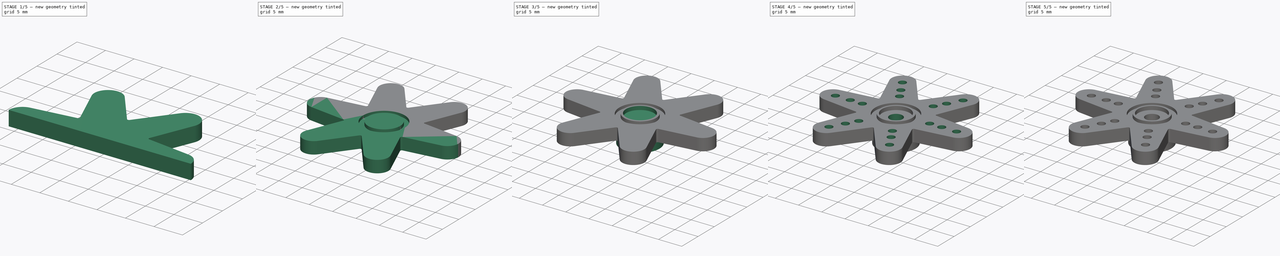
[diagram: build sequence overview — one tinted view per stage of 5, left to right]
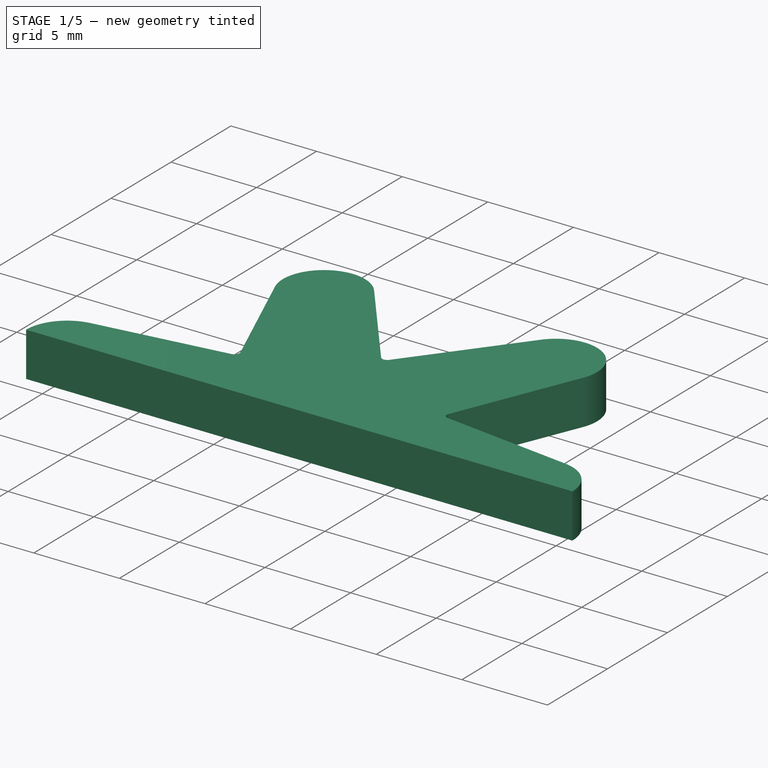
[diagram: stage 1 of 5 — iso view after this stage's code; geometry added in this stage tinted green]
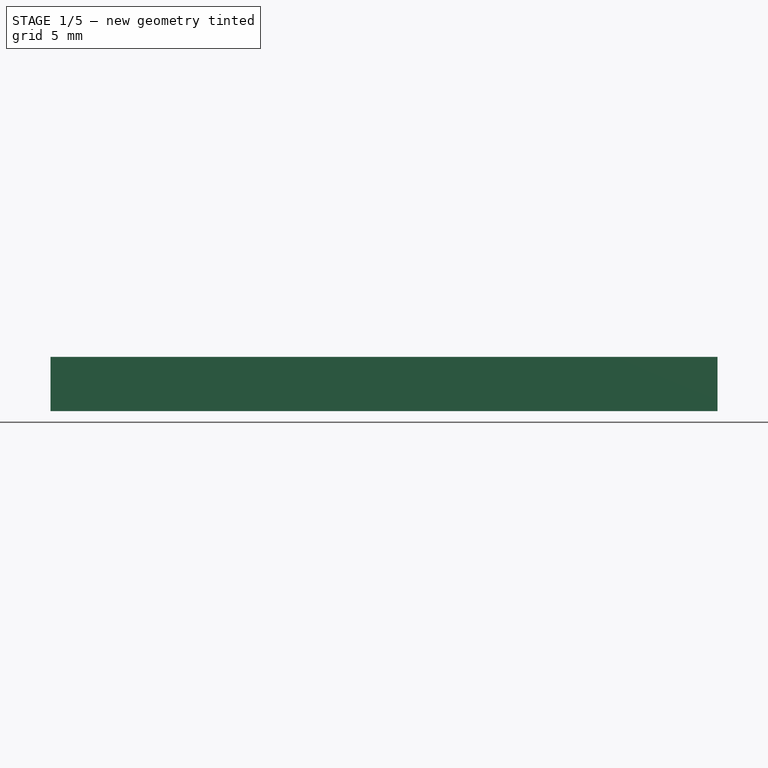
[diagram: stage 1 of 5 — front view after this stage's code; geometry added in this stage tinted green]
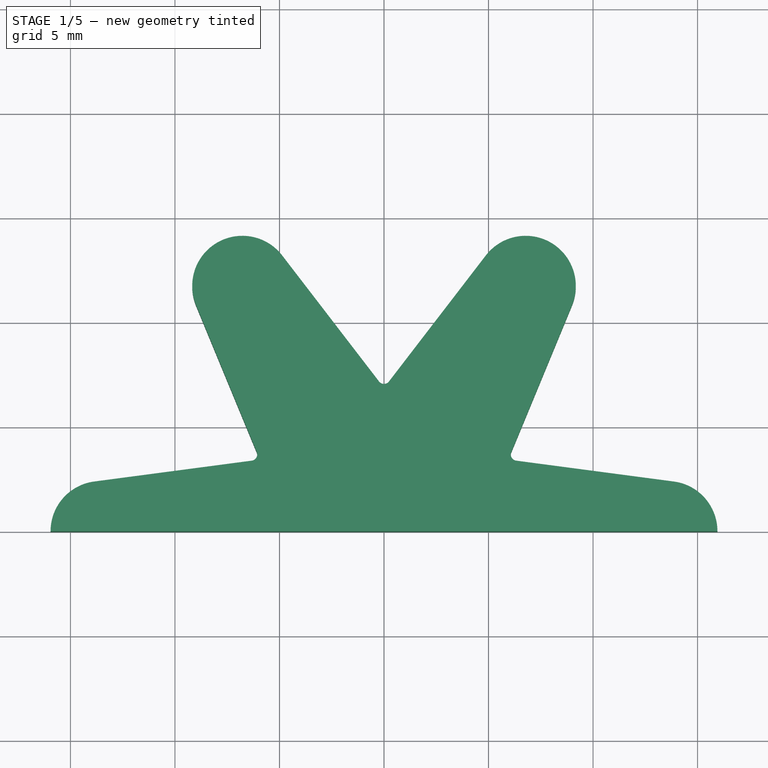
[diagram: stage 1 of 5 — top view after this stage's code; geometry added in this stage tinted green]
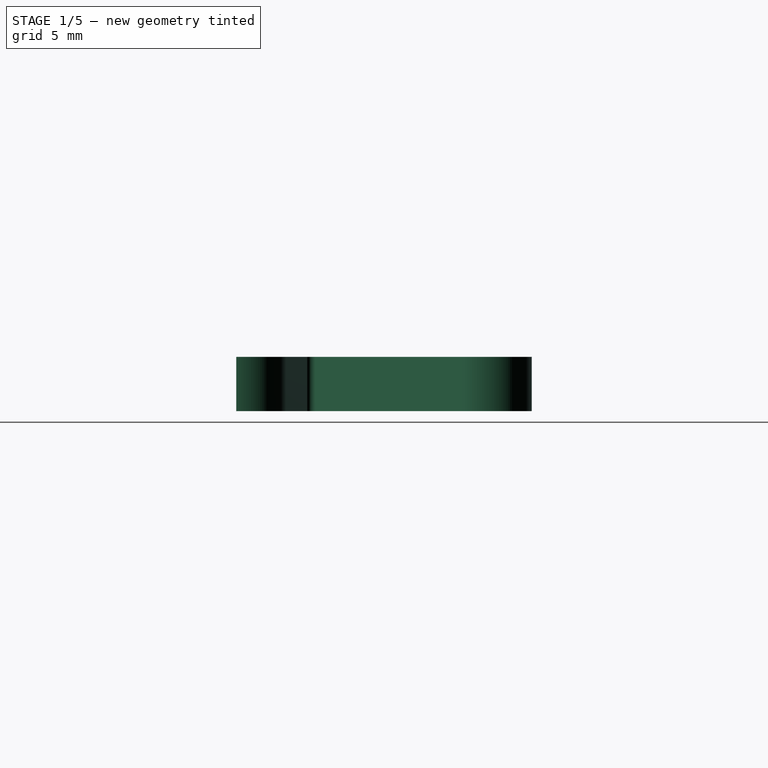
[diagram: stage 1 of 5 — right view after this stage's code; geometry added in this stage tinted green]
FCSTD DOCUMENT  (FreeCAD 0.14R3702 (Git))
Label: SM-S4303R-6-arm-horn
License: CC-BY 3.0
LicenseURL: http://creativecommons.org/licenses/by/3.0/
objects: Sketcher::SketchObject×9, PartDesign::Pocket×5, PartDesign::Pad×4, Part::Mirroring×2, Part::MultiFuse×2, Part::Chamfer×2, PartDesign::PolarPattern×1, Part::Fillet×1
note: 35 computed .brp shape members not serialized (recipe doc carries the construction recipe); baked Part::Feature solids carry a one-line shape summary decoded from their .brp

FEATURE [Sketcher::SketchObject] Sketch  label="horn-body-quarter-sketch"
  sketch-geometry (11):
    g0: LineSegment StartX=-13.8651 StartY=2.37923 StartZ=0 EndX=-6.3259 EndY=3.3776 EndZ=0
    g1: LineSegment StartX=-6.08804 StartY=3.78959 StartZ=0 EndX=-8.99301 EndY=10.8179 EndZ=0
    g2: LineSegment StartX=-4.87206 StartY=13.1971 StartZ=0 EndX=-0.237867 EndY=7.16719 EndZ=0
    g3: LineSegment [constr] StartX=-7.975 StartY=13.8131 StartZ=0 EndX=0 EndY=0 EndZ=0
    g4: LineSegment [constr] StartX=-6.10548 StartY=3.525 StartZ=0 EndX=0 EndY=0 EndZ=0
    g5: LineSegment StartX=-15.95 StartY=0 StartZ=0 EndX=0 EndY=0 EndZ=0
    g6: ArcOfCircle CenterX=-13.55 CenterY=0 CenterZ=0 NormalX=0 NormalY=0 NormalZ=1 Radius=2.4 StartAngle=1.70245 EndAngle=3.14159
    g7: ArcOfCircle CenterX=-6.775 CenterY=11.7346 CenterZ=0 NormalX=0 NormalY=0 NormalZ=1 Radius=2.4 StartAngle=0.655257 EndAngle=3.53353
    g8: ArcOfCircle CenterX=-6.36529 CenterY=3.675 CenterZ=0 NormalX=0 NormalY=0 NormalZ=1 Radius=0.3 StartAngle=4.84405 EndAngle=6.67513
    g9: LineSegment StartX=0 StartY=7.05 StartZ=0 EndX=0 EndY=0 EndZ=0
    g10: ArcOfCircle CenterX=0 CenterY=7.35 CenterZ=0 NormalX=0 NormalY=0 NormalZ=1 Radius=0.3 StartAngle=3.79685 EndAngle=4.71239
  constraints (31):
    c: Coincident(g3,g-1)
    c: Coincident(g4,g-1)
    c: Angle(g-1,g4) = 2.61799
    c: Angle(g-2,g3) = 0.523599
    c: Horizontal(g5)
    c: Coincident(g5,g-1)
    c: Equal(g5,g3)
    c: Tangent(g0,g6)
    c: PointOnObject(g6,g5)
    c: Coincident(g6,g5)
    c: Tangent(g1,g7)
    c: Tangent(g2,g7)
    c: PointOnObject(g7,g3)
    c: Equal(g5,g3)
    c: Equal(g7,g6)
    c: Tangent(g1,g8)
    c: Tangent(g0,g8)
    c: PointOnObject(g8,g4)
    c: PointOnObject(g4,g8)
    c: Vertical(g9)
    c: Tangent(g2,g10)
    c: PointOnObject(g10,g-2)
    c: Coincident(g9,g-1)
    c: Coincident(g10,g9)
    c: Equal(g8,g10)
    c: Equal(g9,g4)
    c: Radius(g7) = 2.4
    c: Radius(g8) = 0.3
    c: Distance(g4) = 7.05
    c: PointOnObject(g3,g7)
    c: Distance(g3) = 15.95
FEATURE [PartDesign::Pad] Pad  label="horn-body-quarter"
  Length = 2.6
  Length2 = 100
  Sketch = -> Sketch
  Type = 0
FEATURE [Part::Mirroring] Part__Mirroring  label="horn-body-quarter-right"
  Base = (0,0,0)
  Normal = (1,0,0)
  Source = -> Pad
FEATURE [Part::MultiFuse] Fusion  label="horn-body-upper-half"
  Shapes = -> [Part__Mirroring,Pad]
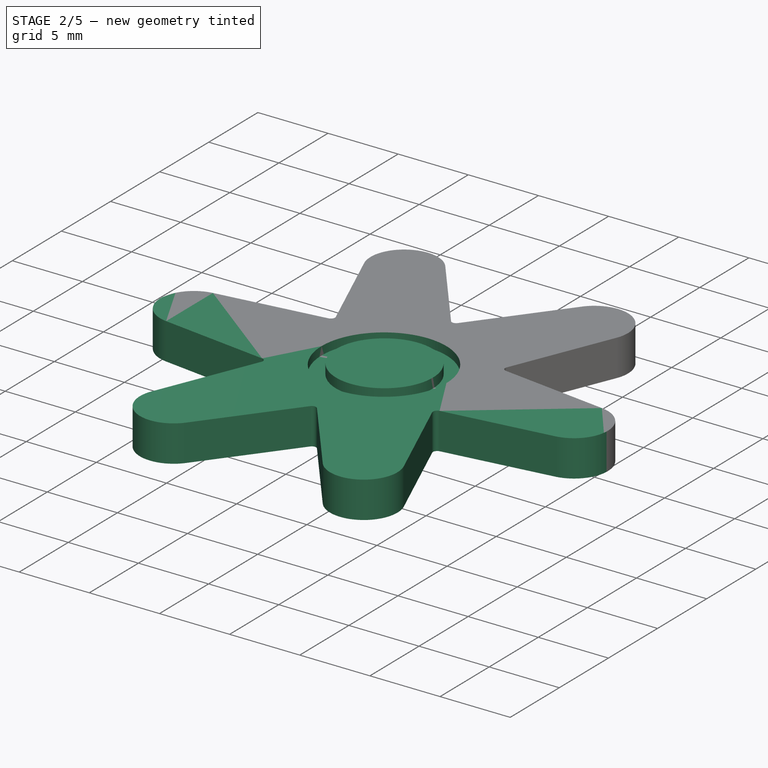
[diagram: stage 2 of 5 — iso view after this stage's code; geometry added in this stage tinted green]
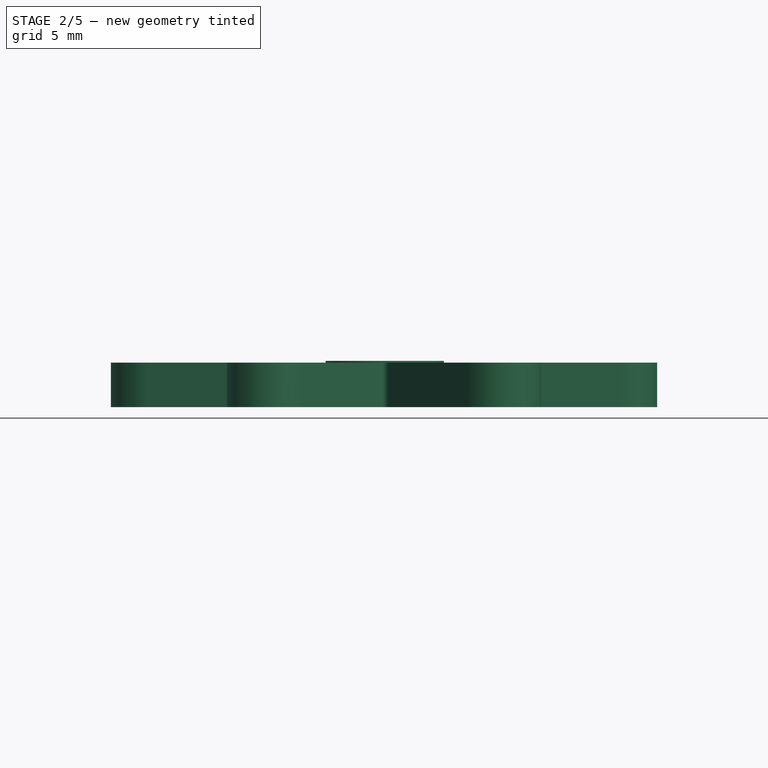
[diagram: stage 2 of 5 — front view after this stage's code; geometry added in this stage tinted green]
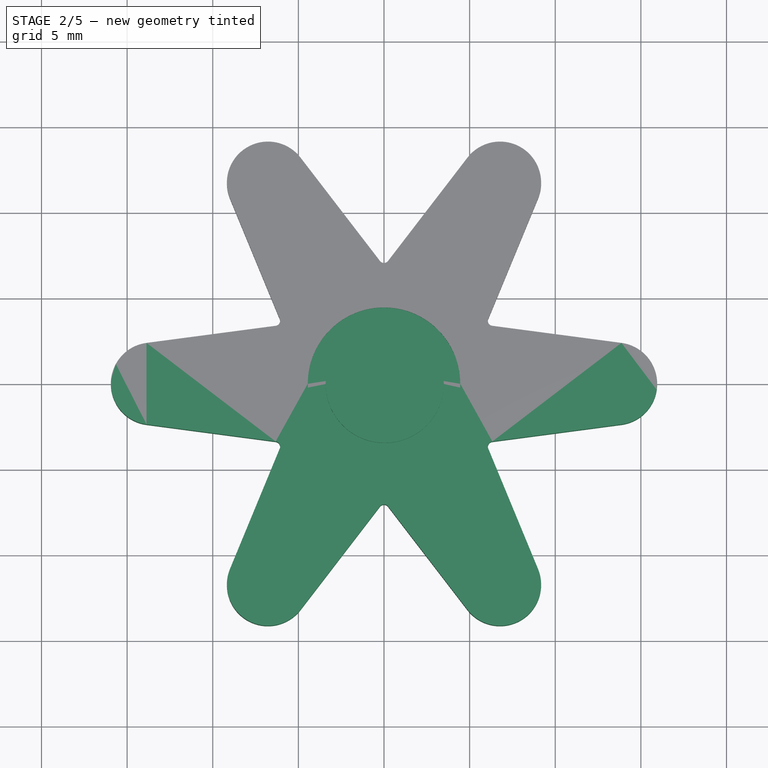
[diagram: stage 2 of 5 — top view after this stage's code; geometry added in this stage tinted green]
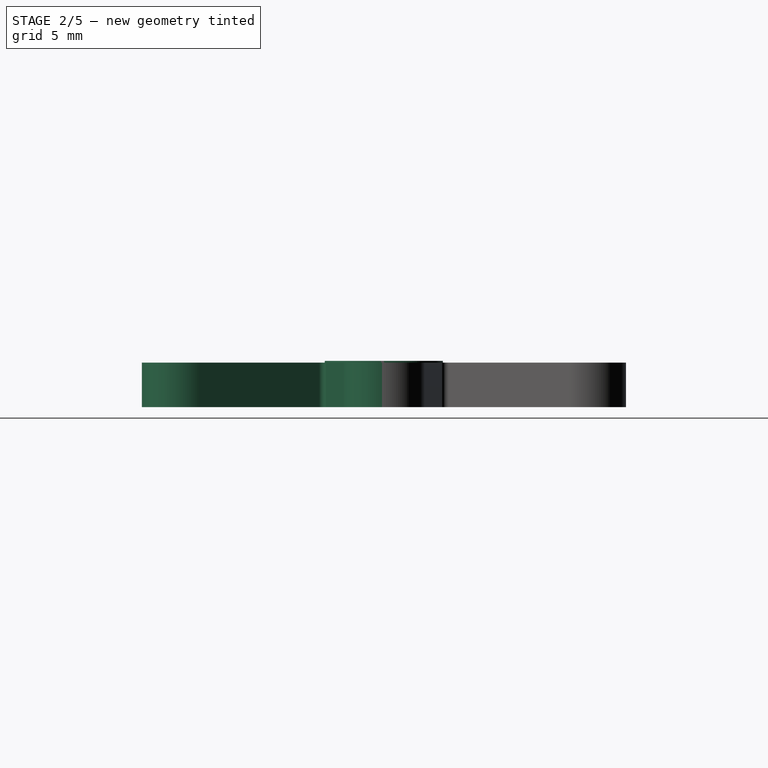
[diagram: stage 2 of 5 — right view after this stage's code; geometry added in this stage tinted green]
FEATURE [Part::Mirroring] Part__Mirroring001  label="horn-body-lower-half (Mirror #2)"
  Base = (0,0,0)
  Normal = (0,1,0)
  Source = -> Fusion
FEATURE [Part::MultiFuse] Fusion001  label="Horn-body-1"
  Shapes = -> [Part__Mirroring001,Fusion]
FEATURE [Sketcher::SketchObject] Sketch001  label="top-1-sketch"
  Placement = pos=(0,0,2.6) rot=(0,0,1;0rad)
  Support = -> Fusion001 [Face24]
  sketch-geometry (1):
    g0: Circle CenterX=0 CenterY=0 CenterZ=0 NormalX=0 NormalY=0 NormalZ=1 Radius=4.45
  constraints (2):
    c: Coincident(g0,g-1)
    c: Radius(g0) = 4.45
FEATURE [PartDesign::Pocket] Pocket  label="top-1"
  Length = 0.6
  Sketch = -> Sketch001
  Type = 0
FEATURE [Sketcher::SketchObject] Sketch002  label="top-2-sketch"
  Placement = pos=(0,0,2) rot=(0,0,1;0rad)
  Support = -> Pocket [Face28]
  sketch-geometry (1):
    g0: Circle CenterX=0.042774 CenterY=-0.010694 CenterZ=0 NormalX=0 NormalY=0 NormalZ=1 Radius=3.45
  constraints (1):
    c: Radius(g0) = 3.45
FEATURE [PartDesign::Pad] Pad001  label="top-2"
  Length = 0.7
  Length2 = 100
  Sketch = -> Sketch002
  Type = 0
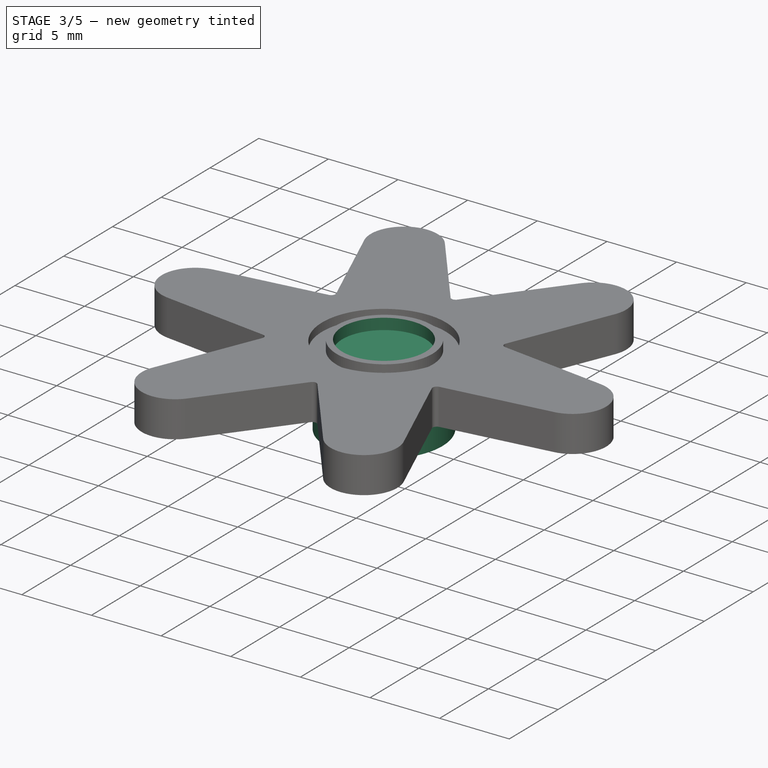
[diagram: stage 3 of 5 — iso view after this stage's code; geometry added in this stage tinted green]
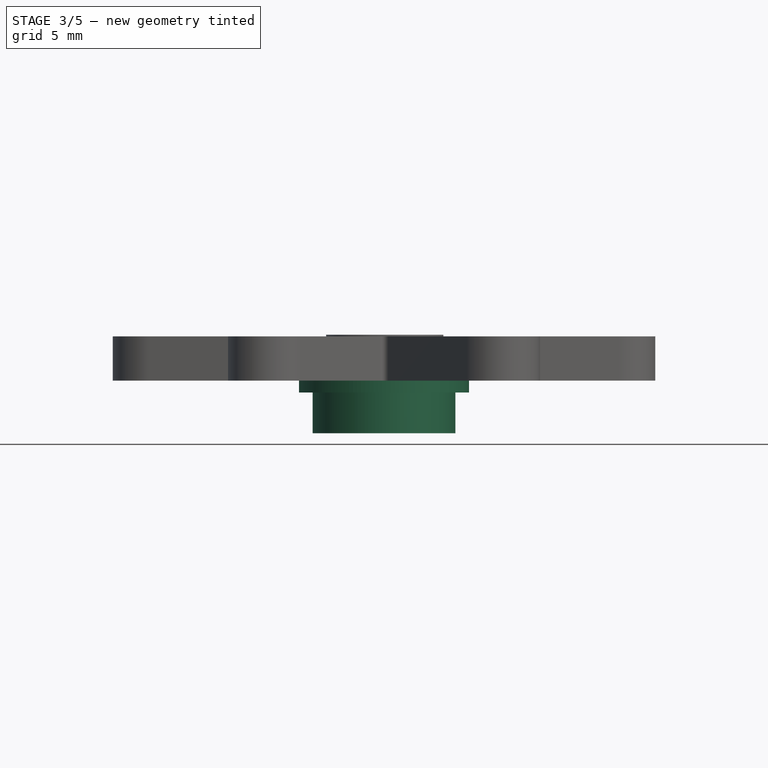
[diagram: stage 3 of 5 — front view after this stage's code; geometry added in this stage tinted green]
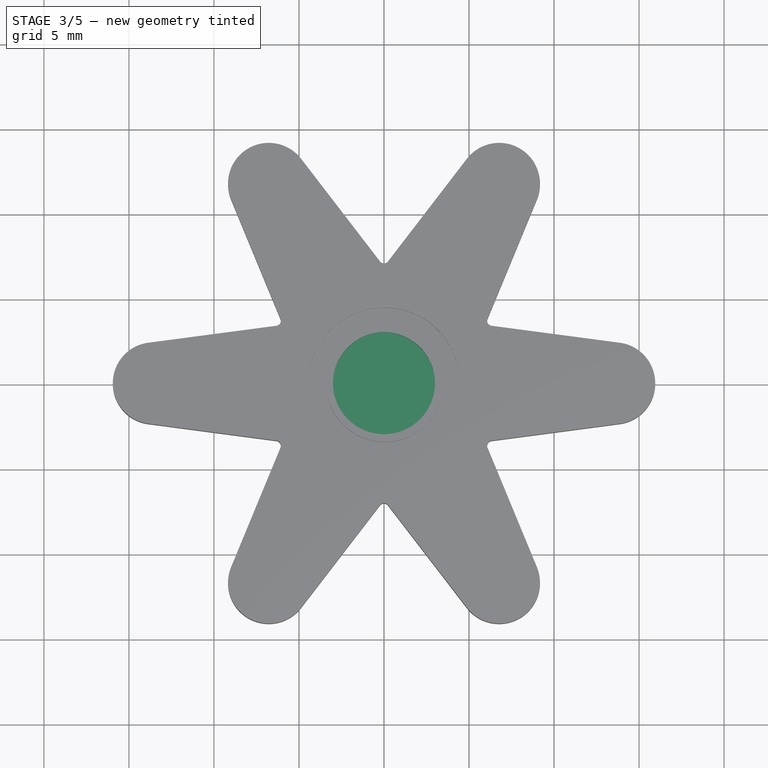
[diagram: stage 3 of 5 — top view after this stage's code; geometry added in this stage tinted green]
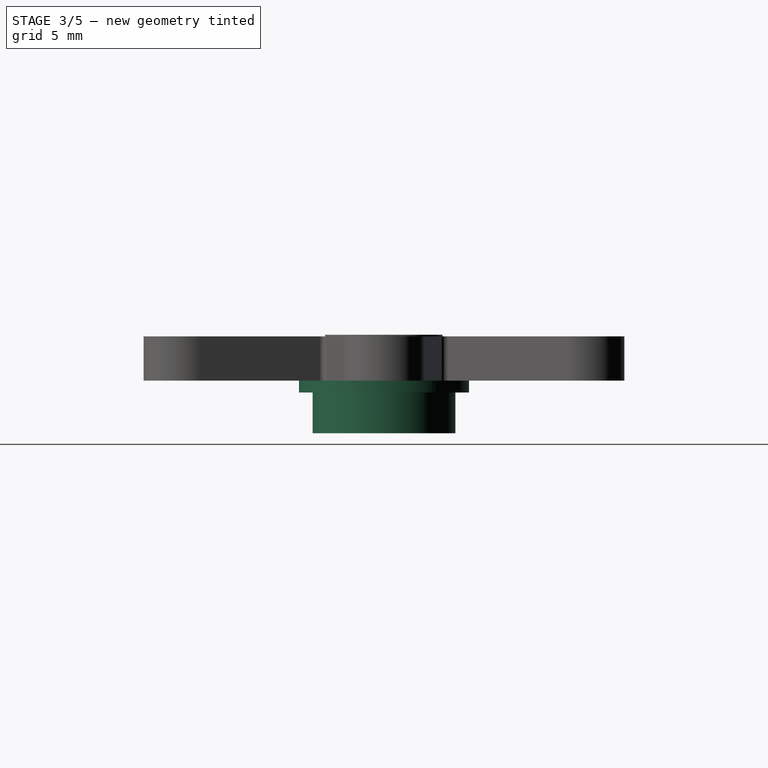
[diagram: stage 3 of 5 — right view after this stage's code; geometry added in this stage tinted green]
FEATURE [Sketcher::SketchObject] Sketch003  label="top-3-sketch"
  Placement = pos=(0,0,2.7) rot=(0,0,1;0rad)
  Support = -> Pad001 [Face30]
  sketch-geometry (1):
    g0: Circle CenterX=0 CenterY=0 CenterZ=0 NormalX=0 NormalY=0 NormalZ=1 Radius=3
  constraints (2):
    c: Coincident(g0,g-1)
    c: Radius(g0) = 3
FEATURE [PartDesign::Pocket] Pocket001  label="top-3"
  Length = 0.8
  Sketch = -> Sketch003
  Type = 0
FEATURE [Sketcher::SketchObject] Sketch004  label="bottom-1-sketch"
  Placement = pos=(0,0,0) rot=(1,0,0;3.14159rad)
  Support = -> Pocket001 [Face4]
  sketch-geometry (1):
    g0: Circle CenterX=0 CenterY=0 CenterZ=0 NormalX=0 NormalY=0 NormalZ=1 Radius=5
  constraints (2):
    c: Coincident(g0,g-1)
    c: Radius(g0) = 5
FEATURE [PartDesign::Pad] Pad002  label="bottom-1"
  Length = 0.7
  Length2 = 100
  Sketch = -> Sketch004
  Type = 0
FEATURE [Sketcher::SketchObject] Sketch005  label="bottom-2-sketch"
  Placement = pos=(0,0,-0.7) rot=(1,0,0;3.14159rad)
  Support = -> Pad002 [Face29]
  sketch-geometry (1):
    g0: Circle CenterX=0 CenterY=0 CenterZ=0 NormalX=0 NormalY=0 NormalZ=1 Radius=4.2
  constraints (2):
    c: Coincident(g0,g-1)
    c: Radius(g0) = 4.2
FEATURE [PartDesign::Pad] Pad003  label="bottom-2"
  Length = 2.4
  Length2 = 100
  Sketch = -> Sketch005
  Type = 0
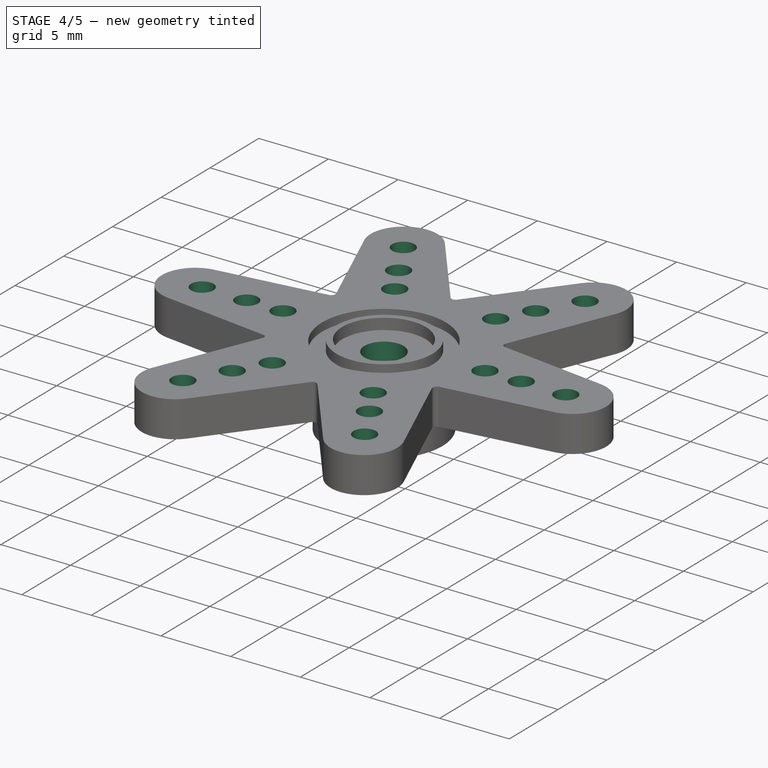
[diagram: stage 4 of 5 — iso view after this stage's code; geometry added in this stage tinted green]
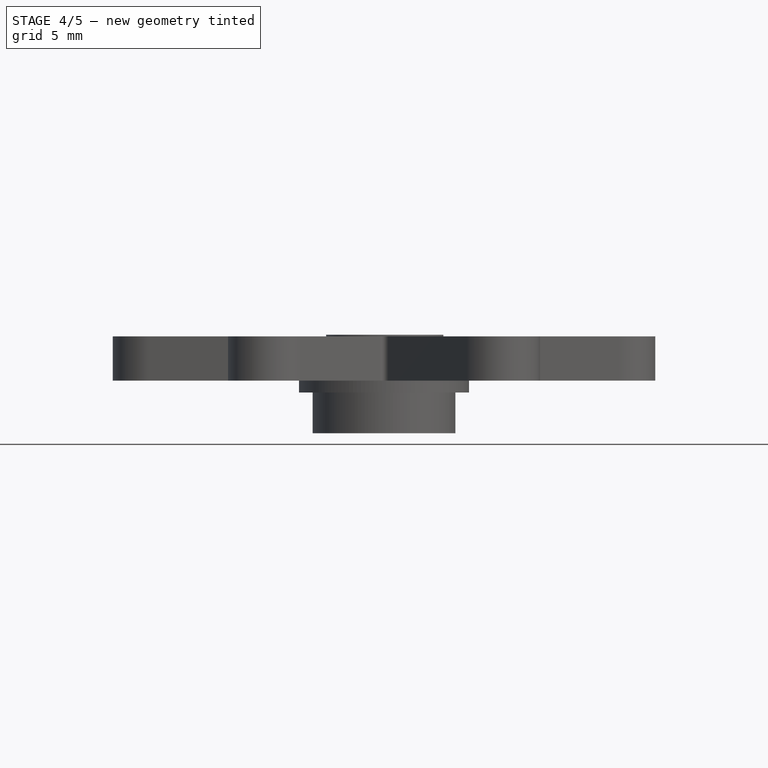
[diagram: stage 4 of 5 — front view after this stage's code; geometry added in this stage tinted green]
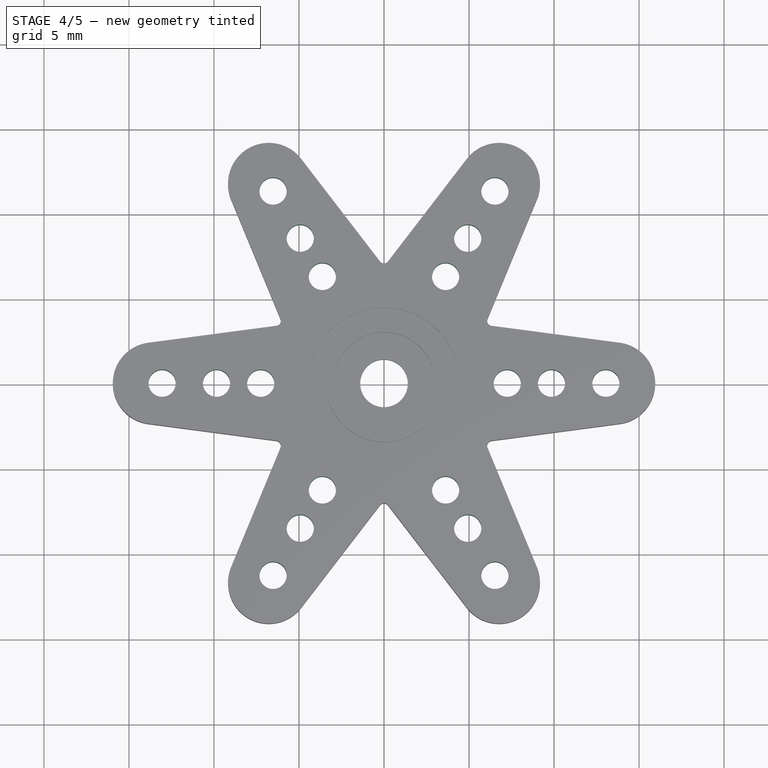
[diagram: stage 4 of 5 — top view after this stage's code; geometry added in this stage tinted green]
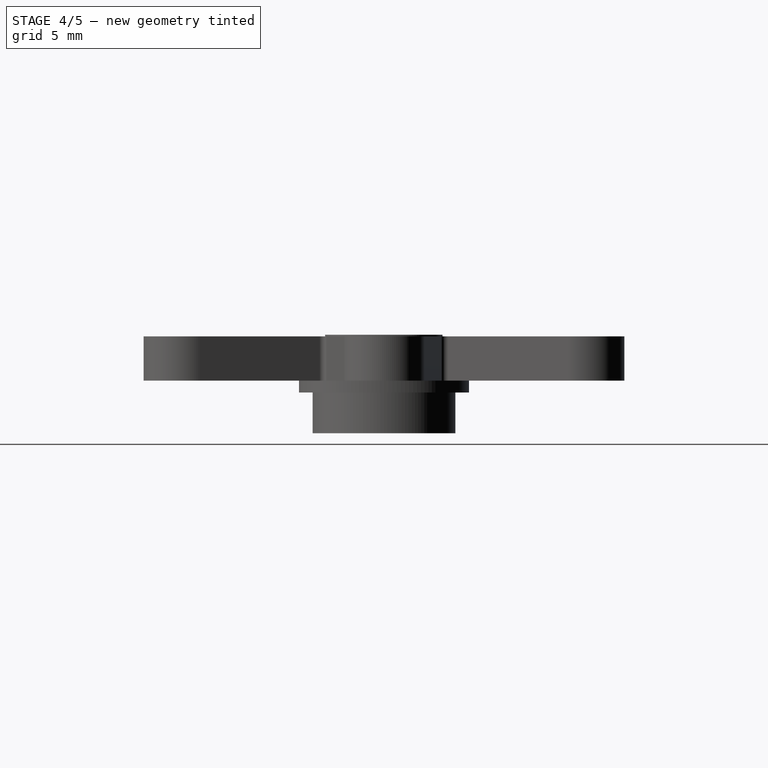
[diagram: stage 4 of 5 — right view after this stage's code; geometry added in this stage tinted green]
FEATURE [Sketcher::SketchObject] Sketch006  label="bottom-3-sketch"
  Placement = pos=(0,0,-3.1) rot=(1,0,0;3.14159rad)
  Support = -> Pad003 [Face33]
  sketch-geometry (1):
    g0: Circle CenterX=0 CenterY=0 CenterZ=0 NormalX=0 NormalY=0 NormalZ=1 Radius=2.9
  constraints (2):
    c: Coincident(g0,g-1)
    c: Radius(g0) = 2.9
FEATURE [PartDesign::Pocket] Pocket002  label="bottom-3"
  Length = 3.8
  Sketch = -> Sketch006
  Type = 0
FEATURE [Sketcher::SketchObject] Sketch007  label="horn-screw-drill-sketch"
  Placement = pos=(0,0,1.9) rot=(0,0,1;0rad)
  Support = -> Pocket002 [Face38]
  sketch-geometry (1):
    g0: Circle CenterX=0 CenterY=0 CenterZ=0 NormalX=0 NormalY=0 NormalZ=1 Radius=1.4
  constraints (2):
    c: Coincident(g0,g-1)
    c: Radius(g0) = 1.4
FEATURE [PartDesign::Pocket] Pocket003  label="horn-screw-drill"
  Length = 5
  Sketch = -> Sketch007
  Type = 1
FEATURE [Sketcher::SketchObject] Sketch008  label="horn-drills-master-sketch"
  Placement = pos=(0,0,2.6) rot=(0,0,1;0rad)
  Support = -> Pocket003 [Face5]
  sketch-geometry (5):
    g0: Circle CenterX=-13.05 CenterY=0 CenterZ=0 NormalX=0 NormalY=0 NormalZ=1 Radius=0.8
    g1: Circle CenterX=-9.85 CenterY=0 CenterZ=0 NormalX=0 NormalY=0 NormalZ=1 Radius=0.8
    g2: Circle CenterX=-7.25 CenterY=0 CenterZ=0 NormalX=0 NormalY=0 NormalZ=1 Radius=0.8
    g3: LineSegment [constr] StartX=-13.05 StartY=0 StartZ=0 EndX=-9.85 EndY=0 EndZ=0
    g4: LineSegment [constr] StartX=-9.85 StartY=0 StartZ=0 EndX=-7.25 EndY=0 EndZ=0
  constraints (14):
    c: PointOnObject(g0,g-1)
    c: Radius(g0) = 0.8
    c: PointOnObject(g2,g-1)
    c: Equal(g0,g1)
    c: Equal(g1,g2)
    c: Coincident(g3,g0)
    c: Horizontal(g3)
    c: Coincident(g3,g1)
    c: DistanceX(g3) = 3.2
    c: Horizontal(g4)
    c: Coincident(g4,g1)
    c: Coincident(g4,g2)
    c: DistanceX(g-1,g0) = -13.05
    c: DistanceX(g4) = 2.6
FEATURE [PartDesign::Pocket] Pocket004  label="horn-drills-master"
  Length = 5
  Sketch = -> Sketch008
  Type = 1
FEATURE [PartDesign::PolarPattern] PolarPattern  label="horn-drills"
  Angle = 360
  Axis = -> Sketch008 [N_Axis]
  Occurrences = 6
  Originals = -> [Pocket004]
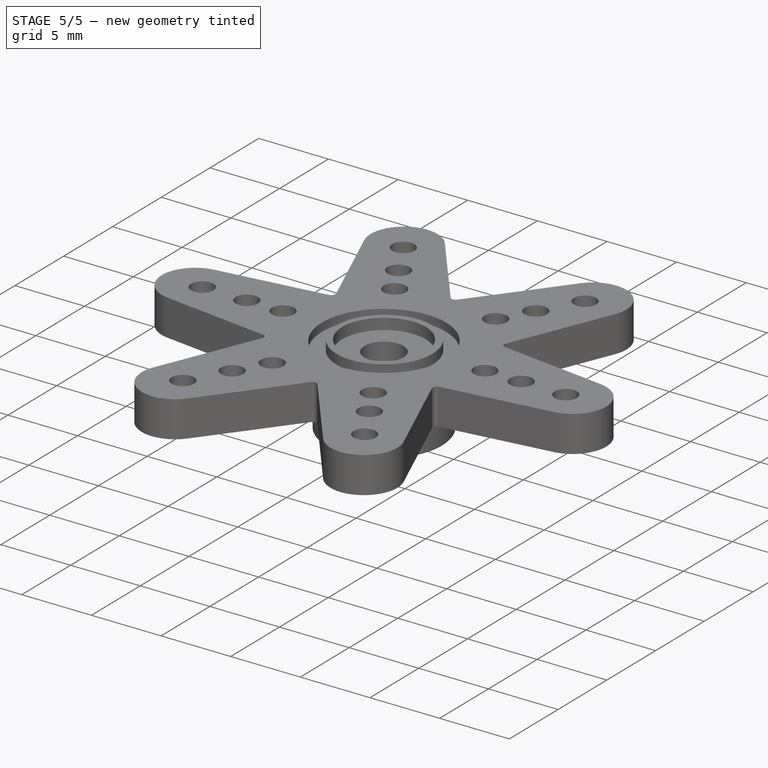
[diagram: stage 5 of 5 — iso view after this stage's code; geometry added in this stage tinted green]
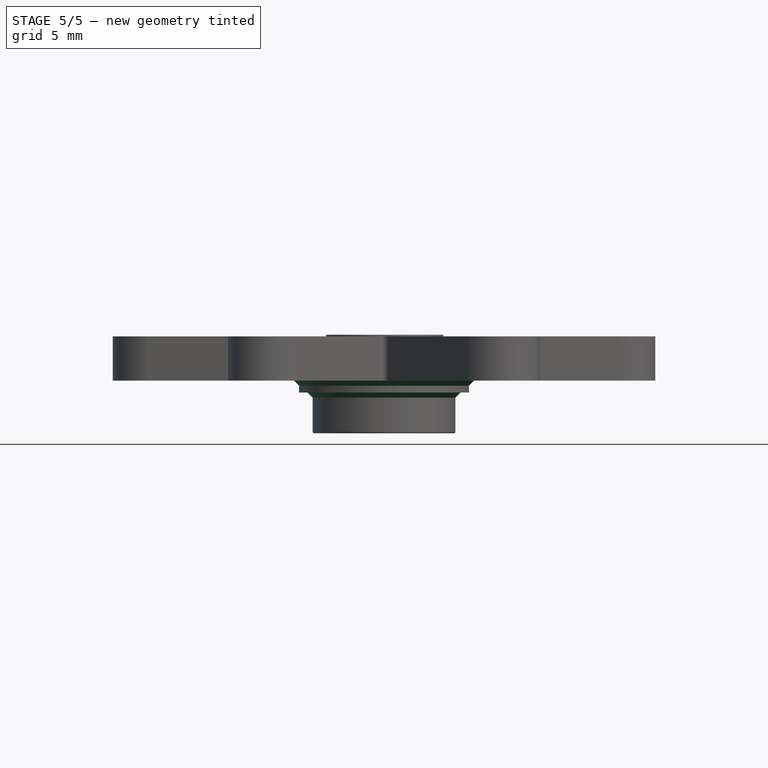
[diagram: stage 5 of 5 — front view after this stage's code; geometry added in this stage tinted green]
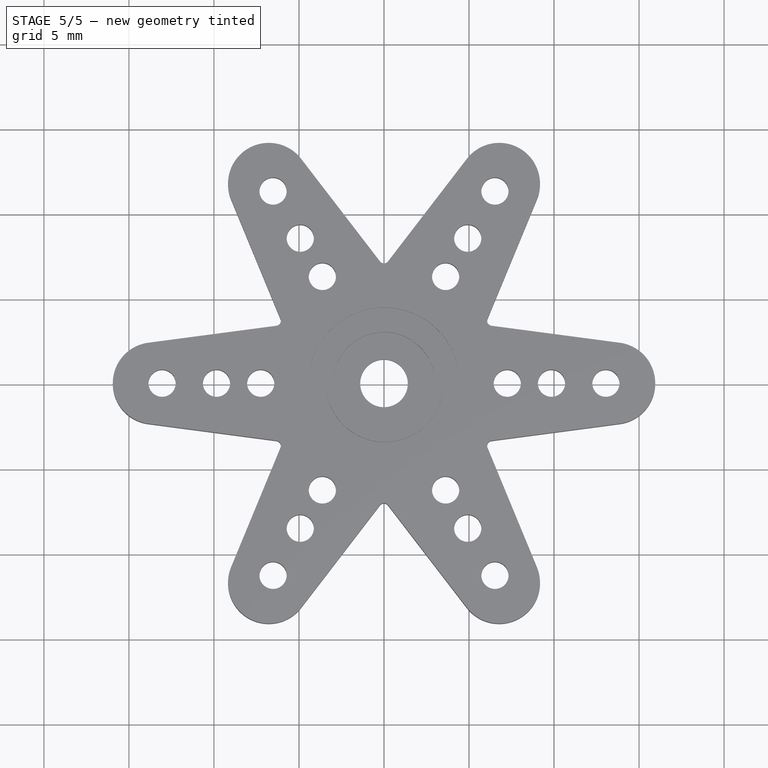
[diagram: stage 5 of 5 — top view after this stage's code; geometry added in this stage tinted green]
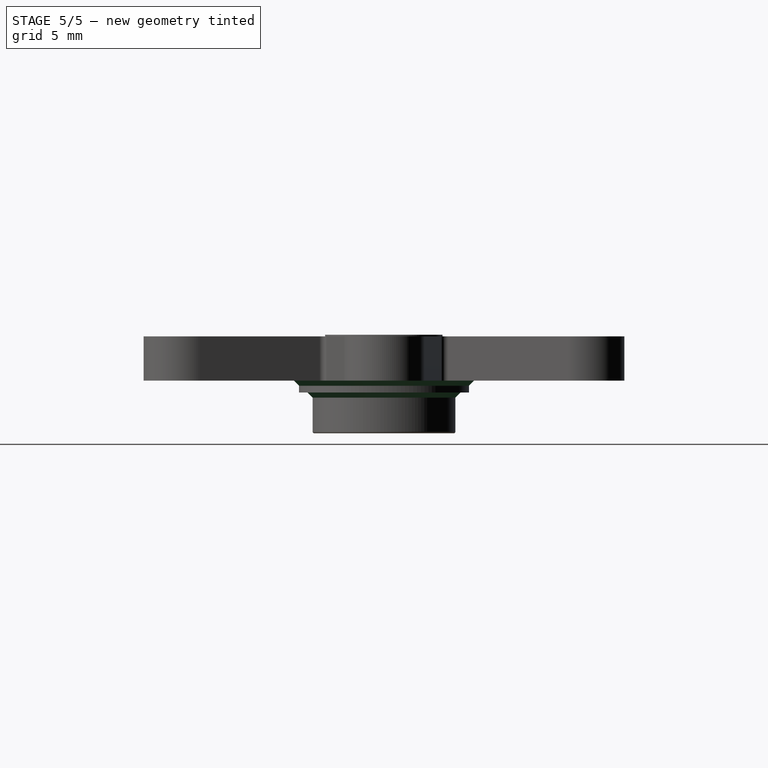
[diagram: stage 5 of 5 — right view after this stage's code; geometry added in this stage tinted green]
FEATURE [Part::Chamfer] Chamfer
  Base = -> PolarPattern
  Edges = 1 edges r=0.3: [Edge37]
FEATURE [Part::Chamfer] Chamfer001
  Base = -> Chamfer
  Edges = 1 edges r=0.3: [Edge141]
FEATURE [Part::Fillet] Fillet  label="Horn-6-arms-final"
  Base = -> Chamfer001
  Edges = 1 edges r=0.1: [Edge8]
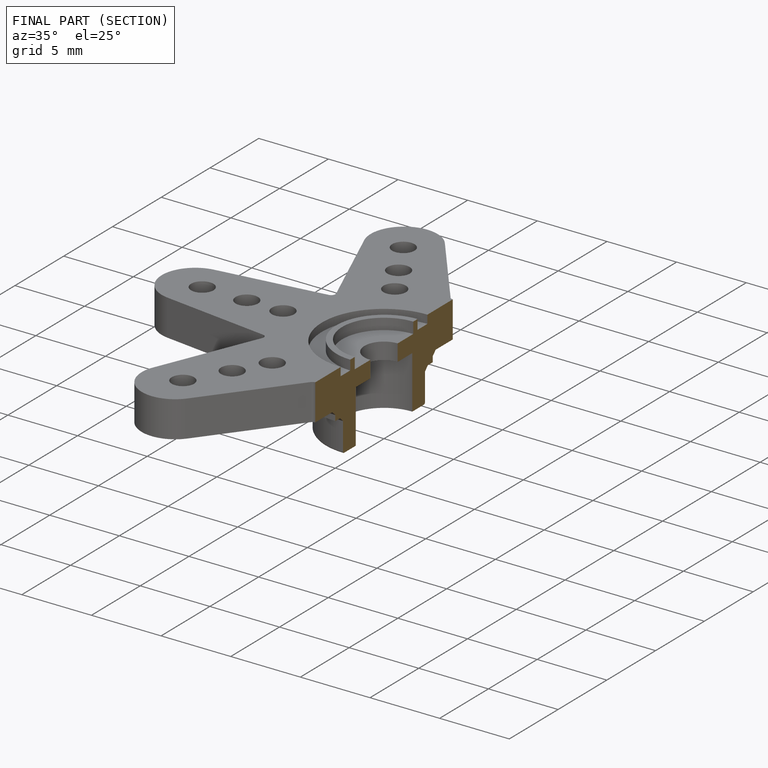
[diagram: finished part — half-section view (interior)]
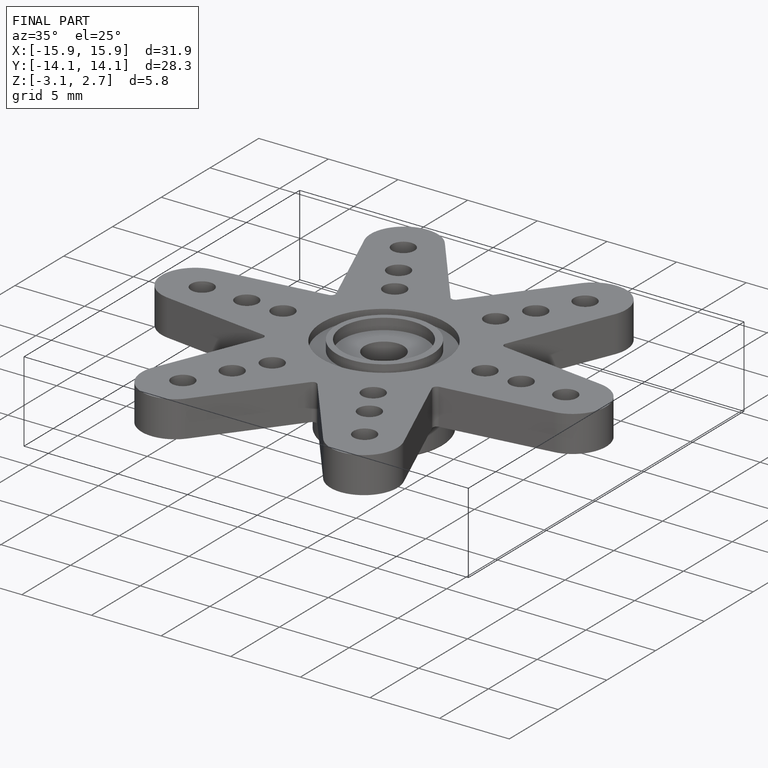
[diagram: finished part — iso view with bounding-box wireframe]
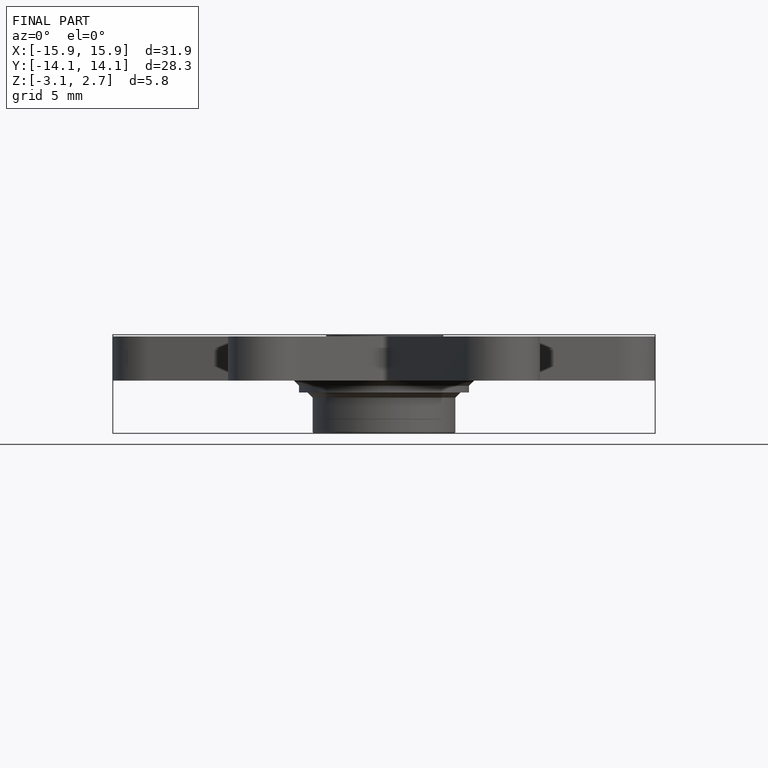
[diagram: finished part — front view with bounding-box wireframe]
